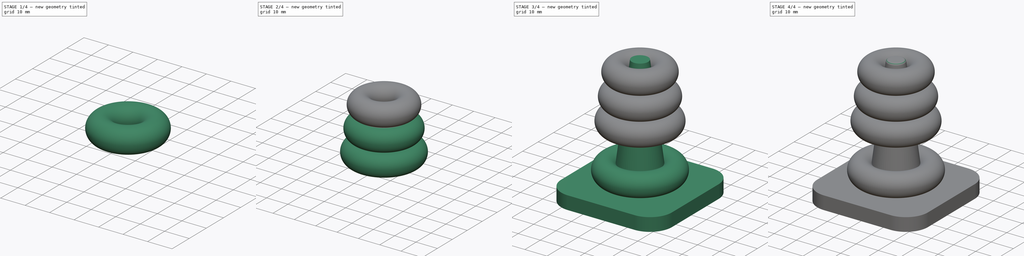
[diagram: build sequence overview — one tinted view per stage of 4, left to right]
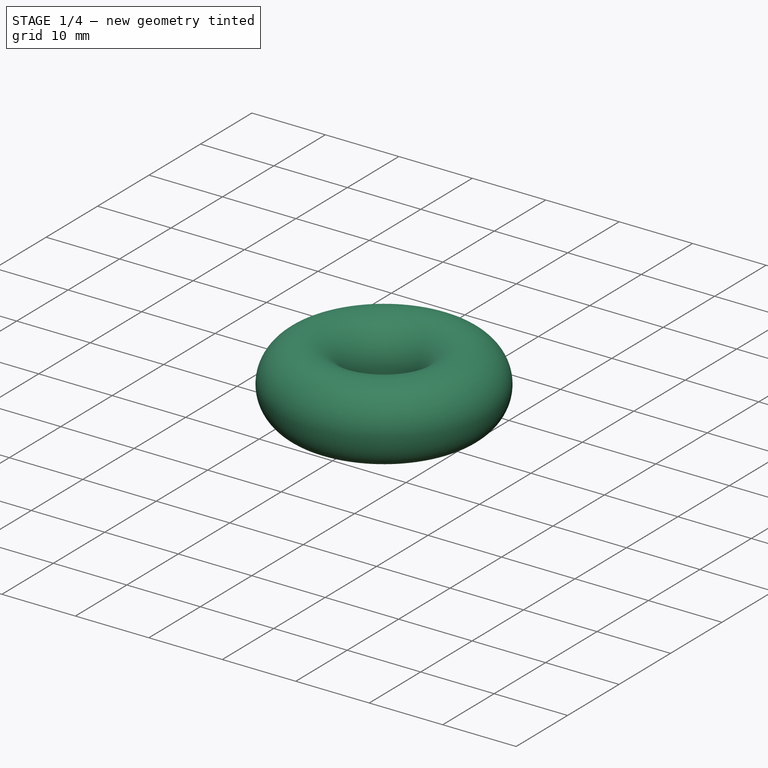
[diagram: stage 1 of 4 — iso view after this stage's code; geometry added in this stage tinted green]
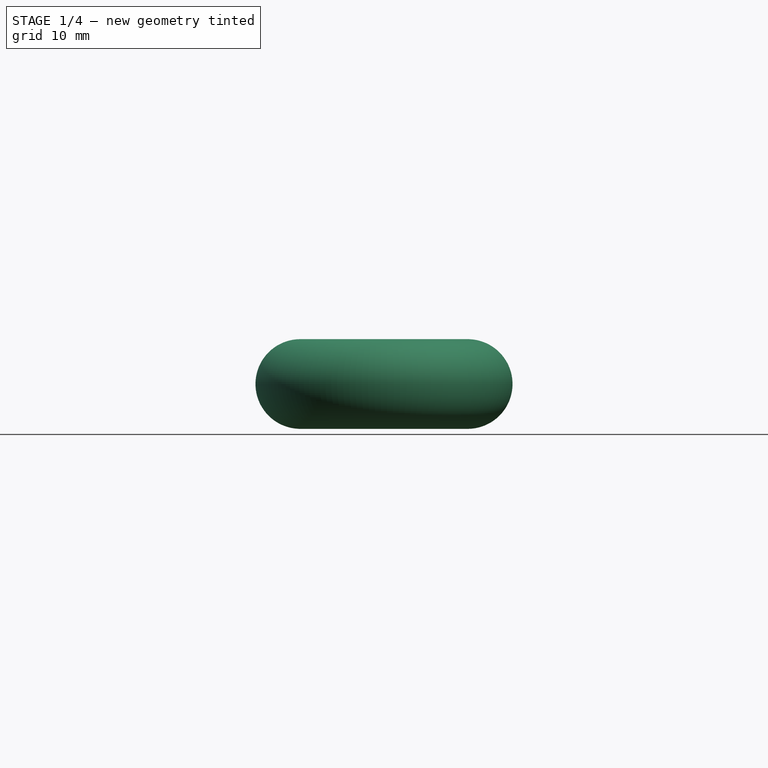
[diagram: stage 1 of 4 — front view after this stage's code; geometry added in this stage tinted green]
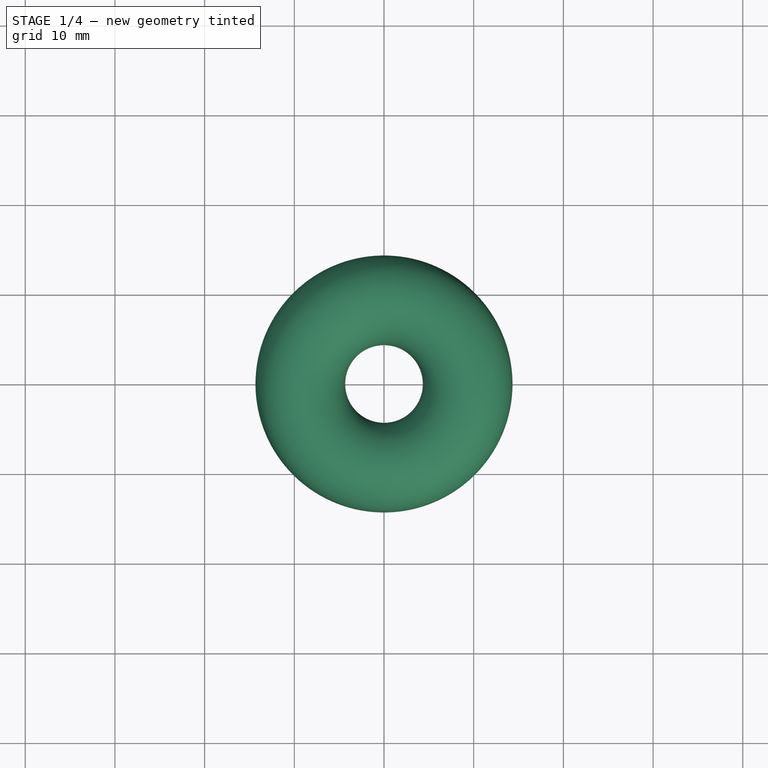
[diagram: stage 1 of 4 — top view after this stage's code; geometry added in this stage tinted green]
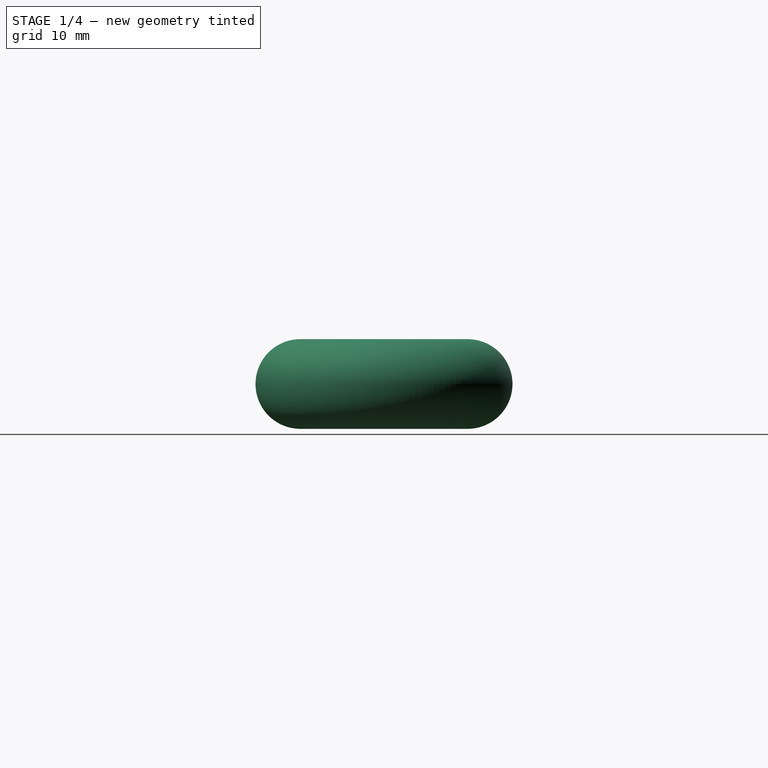
[diagram: stage 1 of 4 — right view after this stage's code; geometry added in this stage tinted green]
FCSTD DOCUMENT  (FreeCAD 0.21R33771 (Git))
Label: stacker
License: All rights reserved
LicenseURL: http://en.wikipedia.org/wiki/All_rights_reserved
objects: PartDesign::Body×6, PartDesign::SubShapeBinder×4, PartDesign::FeatureBase×4, Sketcher::SketchObject×3, PartDesign::Pad×2, PartDesign::Fillet×2, Spreadsheet::Sheet×1, PartDesign::Revolution×1
note: 27 computed .brp shape members not serialized (recipe doc carries the construction recipe); baked Part::Feature solids carry a one-line shape summary decoded from their .brp

FEATURE [PartDesign::Body] Body  label="Base"
  Group = -> [Sketch,Pad,Sketch001,Pad001,Fillet,Fillet001]
  Origin = -> Origin
  Tip = -> Fillet001
FEATURE [Sketcher::SketchObject] Sketch002
  FullyConstrained = true
  MapMode = 5
  Placement = pos=(0,0,0) rot=(1,0,0;1.5708rad)
  Support = -> [XZ_Plane001]
  expr: .Constraints.RingDia = <<Sizes>>.RingThickness
  expr: Constraints[1] = <<Sizes>>.RingThickness / 2
  expr: Constraints[2] = <<Sizes>>.ShaftBase - tan(<<Sizes>>.ShaftAngle) * (href(<<RingBody>>.RingId) + 0.5) * <<Sizes>>.RingThickness - <<Sizes>>.RingThickness / 2
  sketch-geometry (1):
    g0: Circle CenterX=14.3701 CenterY=5 CenterZ=0 NormalX=0 NormalY=0 NormalZ=1 AngleXU=0 Radius=5
  constraints (3):
    c: Diameter(g0) = 10  'RingDia'
    c: DistanceY(g-1,g0) = 5
    c: DistanceX(g0) = 14.3701
FEATURE [PartDesign::Revolution] Revolution
  Angle = 360
  Axis = (0,2e-16,1)
  Base = (0,0,0)
  Placement = pos=(0,0,0) rot=(1,0,0;1.5708rad)
  Profile = -> Sketch002
  ReferenceAxis = -> Sketch002 [V_Axis]
FEATURE [PartDesign::Body] Body004  label="Ring3"
  BaseFeature = -> Binder002
  Group = -> [BaseFeature002,Binder002]
  Origin = -> Origin004
  Tip = -> BaseFeature002
FEATURE [PartDesign::SubShapeBinder] Binder003
  BindCopyOnChange = 2
  BindMode = 0
  ClaimChildren = false
  Context = -> Body005 [Binder003.]
  Fuse = false
  MakeFace = true
  OffsetFill = false
  OffsetIntersection = false
  OffsetJoinType = 0
  OffsetOpenResult = false
  PartialLoad = false
  Relative = true
  RingId = 4
  Support = -> [Body001]
  _Version = 2
FEATURE [PartDesign::FeatureBase] BaseFeature003
  BaseFeature = -> Binder003
FEATURE [PartDesign::Body] Body005  label="Ring4"
  BaseFeature = -> Binder003
  Group = -> [BaseFeature003,Binder003]
  Origin = -> Origin005
  Tip = -> BaseFeature003
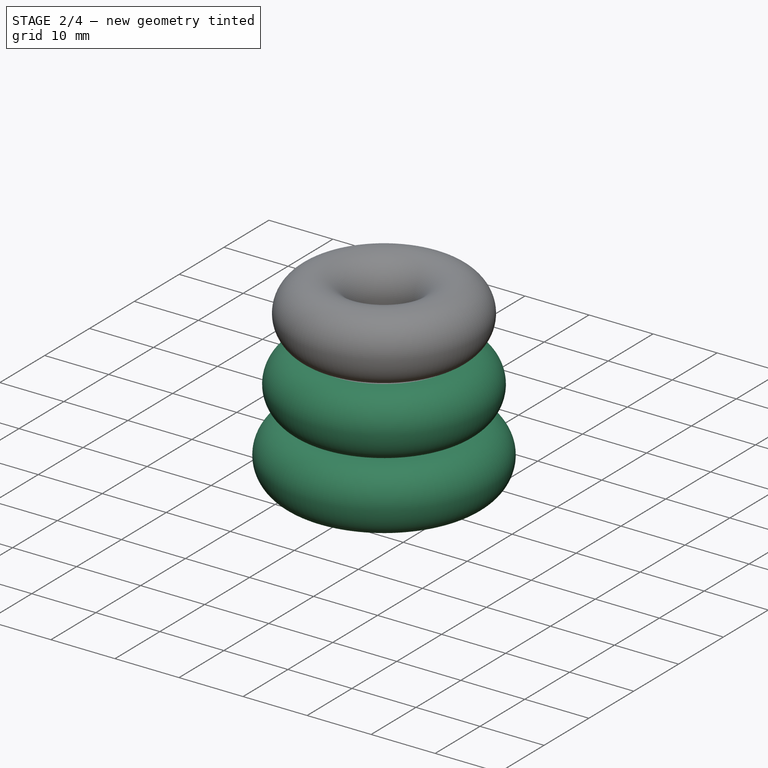
[diagram: stage 2 of 4 — iso view after this stage's code; geometry added in this stage tinted green]
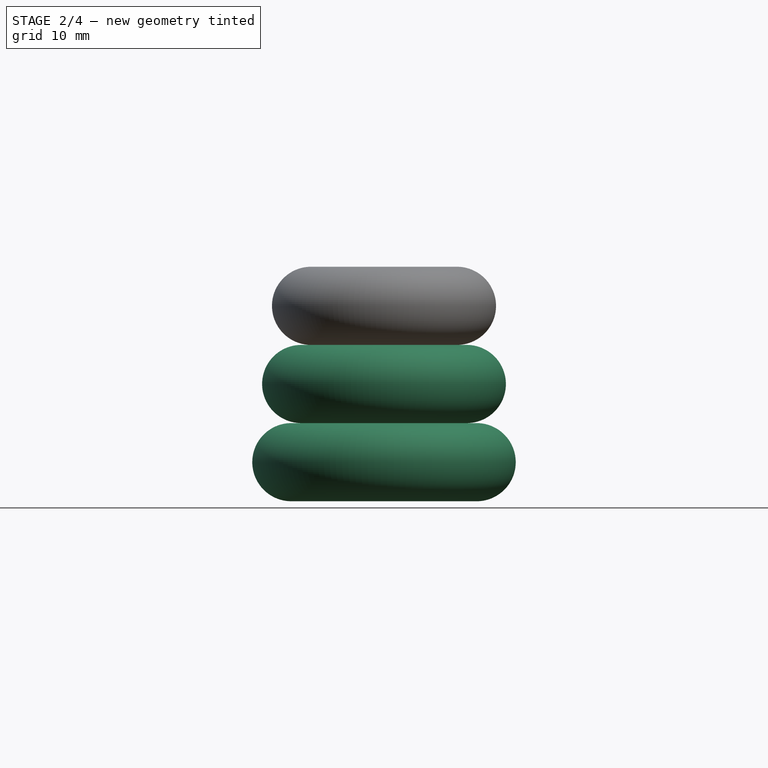
[diagram: stage 2 of 4 — front view after this stage's code; geometry added in this stage tinted green]
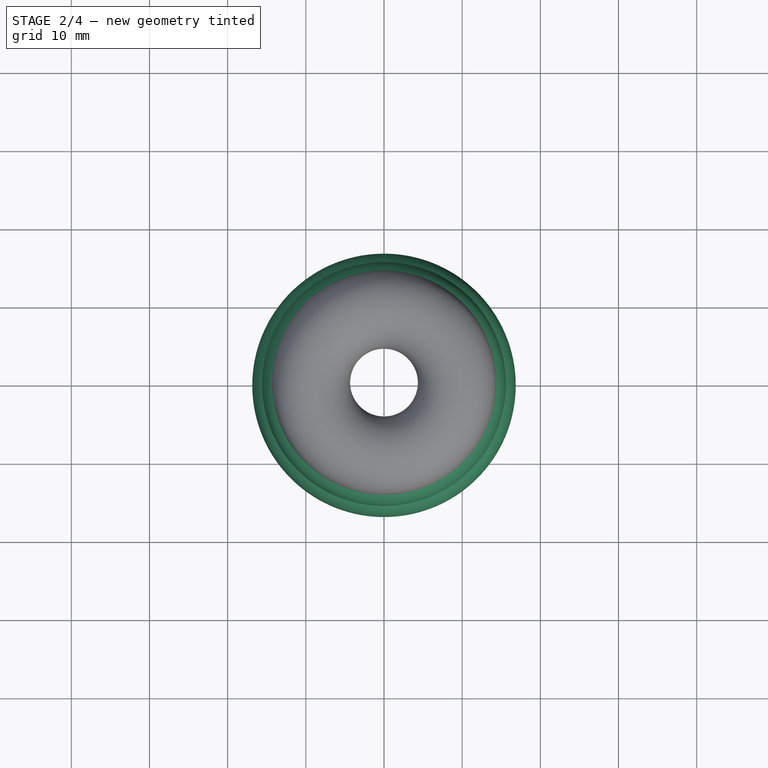
[diagram: stage 2 of 4 — top view after this stage's code; geometry added in this stage tinted green]
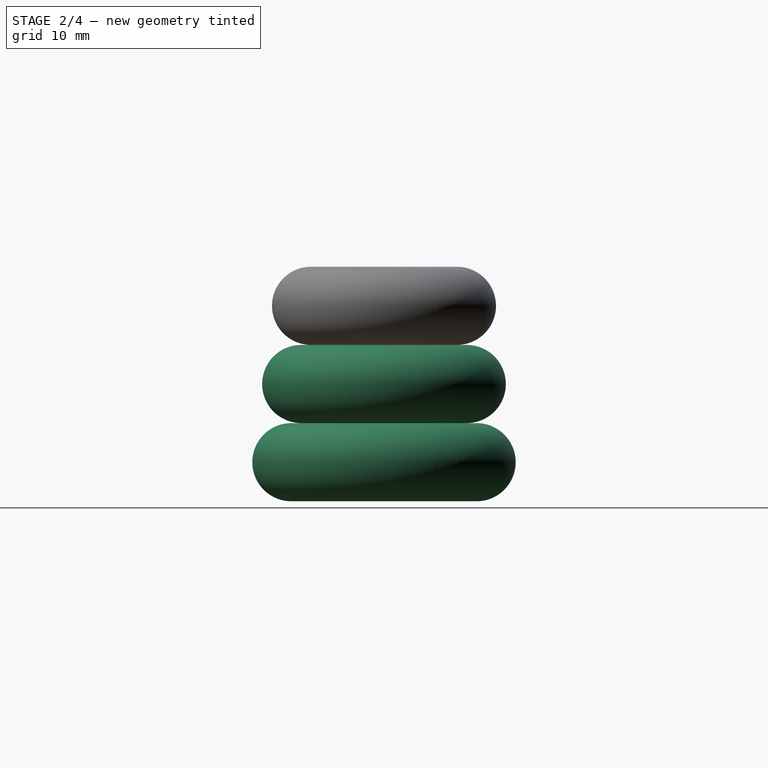
[diagram: stage 2 of 4 — right view after this stage's code; geometry added in this stage tinted green]
FEATURE [PartDesign::Body] Body002  label="Ring1"
  BaseFeature = -> Binder
  Group = -> [BaseFeature,Binder]
  Origin = -> Origin002
  Placement = pos=(0,0,10) rot=(0,0,1;0rad)
  Tip = -> BaseFeature
  expr: .Placement.Base.z = Binder.RingId * <<Sizes>>.RingThickness
FEATURE [PartDesign::SubShapeBinder] Binder001
  BindCopyOnChange = 2
  BindMode = 0
  ClaimChildren = false
  Context = -> Body003 [Binder001.]
  Fuse = false
  MakeFace = true
  OffsetFill = false
  OffsetIntersection = false
  OffsetJoinType = 0
  OffsetOpenResult = false
  PartialLoad = false
  Relative = true
  RingId = 2
  Support = -> [Body001]
  _Version = 2
FEATURE [PartDesign::FeatureBase] BaseFeature001
  BaseFeature = -> Binder001
FEATURE [PartDesign::Body] Body003  label="Ring2"
  BaseFeature = -> Binder001
  Group = -> [BaseFeature001,Binder001]
  Origin = -> Origin003
  Tip = -> BaseFeature001
FEATURE [PartDesign::SubShapeBinder] Binder002
  BindCopyOnChange = 2
  BindMode = 0
  ClaimChildren = false
  Context = -> Body004 [Binder002.]
  Fuse = false
  MakeFace = true
  OffsetFill = false
  OffsetIntersection = false
  OffsetJoinType = 0
  OffsetOpenResult = false
  PartialLoad = false
  Relative = true
  RingId = 3
  Support = -> [Body001]
  _Version = 2
FEATURE [PartDesign::FeatureBase] BaseFeature002
  BaseFeature = -> Binder002
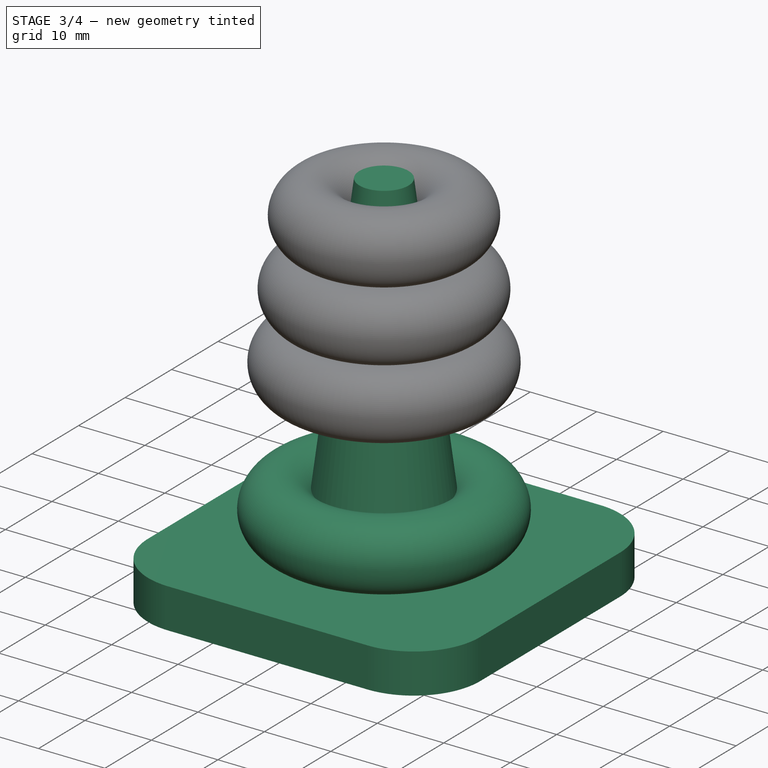
[diagram: stage 3 of 4 — iso view after this stage's code; geometry added in this stage tinted green]
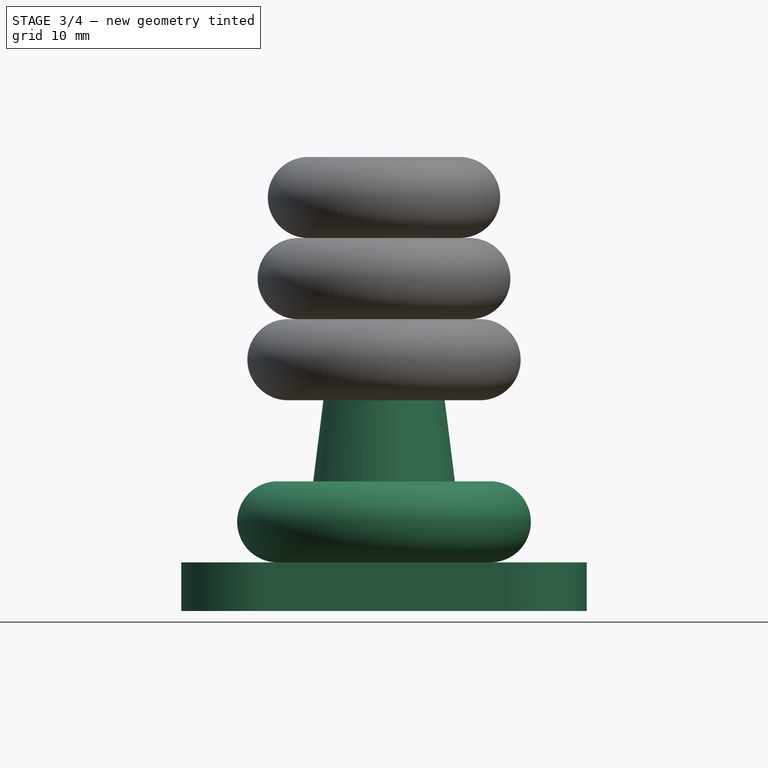
[diagram: stage 3 of 4 — front view after this stage's code; geometry added in this stage tinted green]
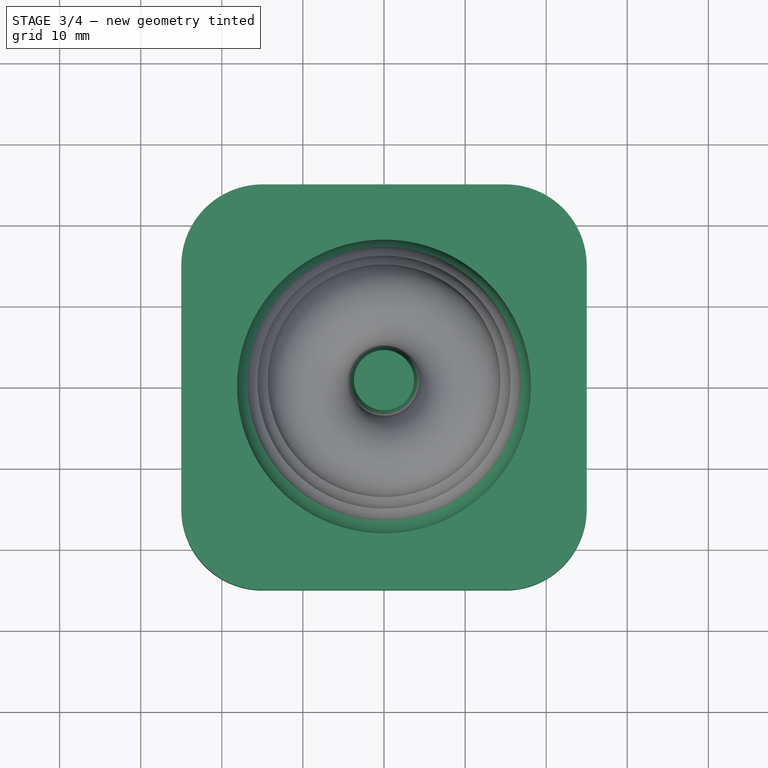
[diagram: stage 3 of 4 — top view after this stage's code; geometry added in this stage tinted green]
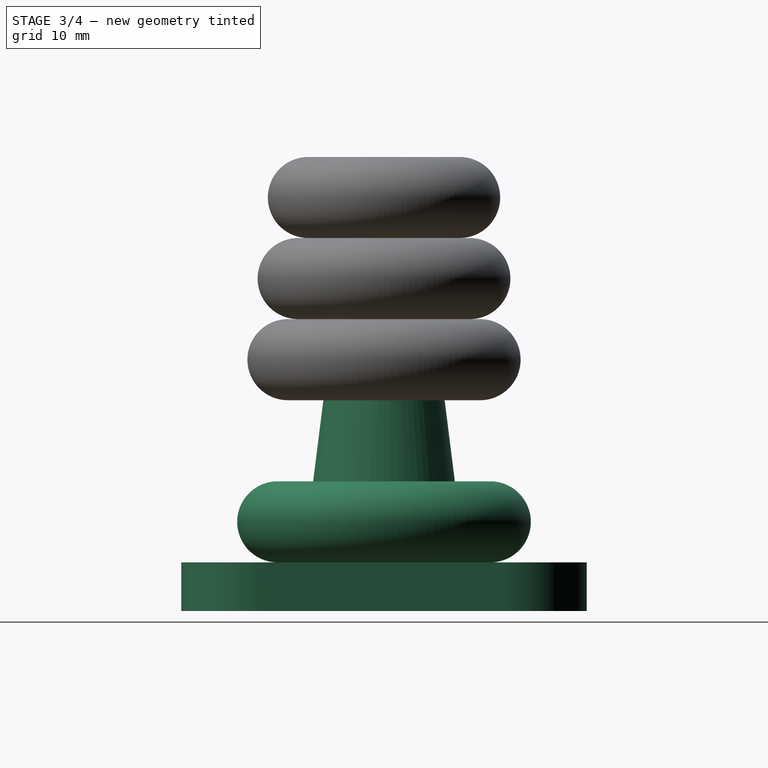
[diagram: stage 3 of 4 — right view after this stage's code; geometry added in this stage tinted green]
FEATURE [Sketcher::SketchObject] Sketch
  FullyConstrained = true
  MapMode = 5
  Support = -> [XY_Plane]
  expr: .Constraints.BaseDims = <<Sizes>>.BaseWidth
  expr: .Constraints.CornerRadius = <<Sizes>>.BaseWidth / 5
  expr: Constraints[17] = .Constraints.BaseDims
  sketch-geometry (8):
    g0: LineSegment StartX=15 StartY=-25 StartZ=0 EndX=-15 EndY=-25 EndZ=0
    g1: LineSegment StartX=-25 StartY=-15 StartZ=0 EndX=-25 EndY=15 EndZ=0
    g2: LineSegment StartX=-15 StartY=25 StartZ=0 EndX=15 EndY=25 EndZ=0
    g3: LineSegment StartX=25 StartY=15 StartZ=0 EndX=25 EndY=-15 EndZ=0
    g4: ArcOfCircle CenterX=15 CenterY=-15 CenterZ=0 NormalX=0 NormalY=0 NormalZ=1 AngleXU=0 Radius=10 StartAngle=4.71239 EndAngle=6.28319
    g5: ArcOfCircle CenterX=-15 CenterY=-15 CenterZ=0 NormalX=0 NormalY=0 NormalZ=1 AngleXU=0 Radius=10 StartAngle=3.14159 EndAngle=4.71239
    g6: ArcOfCircle CenterX=-15 CenterY=15 CenterZ=0 NormalX=0 NormalY=0 NormalZ=1 AngleXU=0 Radius=10 StartAngle=1.5708 EndAngle=3.14159
    g7: ArcOfCircle CenterX=15 CenterY=15 CenterZ=0 NormalX=0 NormalY=0 NormalZ=1 AngleXU=0 Radius=10 StartAngle=-2.31e-14 EndAngle=1.5708
  constraints (19):
    c: Horizontal(g0)
    c: Vertical(g1)
    c: Tangent(g3,g4) = 1.5708
    c: Tangent(g0,g4) = 1.5708
    c: Tangent(g0,g5) = 1.5708
    c: Tangent(g1,g5) = 1.5708
    c: Tangent(g1,g6) = 1.5708
    c: Tangent(g2,g6) = 1.5708
    c: Tangent(g2,g7) = 1.5708
    c: Tangent(g3,g7) = 1.5708
    c: Parallel(g0,g2)
    c: Parallel(g1,g3)
    c: Radius(g4) = 10  'CornerRadius'
    c: Equal(g4,g5)
    c: Equal(g5,g6)
    c: Equal(g6,g7)
    c: DistanceY(g0,g2) = 50  'BaseDims'
    c: DistanceX(g1,g3) = 50
    c: Symmetric(g1,g3,g-1)
FEATURE [Spreadsheet::Sheet] Spreadsheet  label="Sizes"
  cells = A1='BaseWidth; B1(BaseWidth)=50; A2='BaseHeight; B2(BaseHeight)=6; A3='ShaftBase; B3(ShaftBase)==BaseWidth / 5 * 2; A4='ShaftHeight; B4(ShaftHeight)==NumRings * RingThickness; A5='RingThickness; B5(RingThickness)=10; A6='RingNarrowing; B6(RingNarrowing)==RingThickness / 4; A7='ShaftAngle; B7(ShaftAngle)==90 deg - acos(RingNarrowing / 2 / RingThickness); A8='NumRings; B8(NumRings)=5
FEATURE [PartDesign::Pad] Pad  label="BasePad"
  Direction = (0,0,1)
  Length = 6
  Length2 = 10
  Profile = -> Sketch
  ReferenceAxis = -> Sketch [N_Axis]
  Type = 0
  expr: Length = <<Sizes>>.BaseHeight
FEATURE [Sketcher::SketchObject] Sketch001
  ExternalGeometry = -> [Pad]
  FullyConstrained = true
  MapMode = 5
  Placement = pos=(0,0,6) rot=(0,0,1;0rad)
  Support = -> [Pad]
  expr: Constraints[1] = <<Sizes>>.ShaftBase
  sketch-geometry (1):
    g0: Circle CenterX=-2.9e-15 CenterY=1.112e-13 CenterZ=0 NormalX=0 NormalY=0 NormalZ=1 AngleXU=0 Radius=10
  constraints (2):
    c: Symmetric(g-4,g-3,g0)
    c: Diameter(g0) = 20
FEATURE [PartDesign::Pad] Pad001  label="Shaft"
  BaseFeature = -> Pad
  Direction = (0,0,1)
  Length = 50
  Length2 = 10
  Profile = -> Sketch001
  ReferenceAxis = -> Sketch001 [N_Axis]
  TaperAngle = -7.18076
  Type = 0
  expr: Length = <<Sizes>>.ShaftHeight
  expr: TaperAngle = 0 deg - <<Sizes>>.ShaftAngle
FEATURE [PartDesign::Body] Body001  label="RingBody"
  Group = -> [Sketch002,Revolution]
  Origin = -> Origin001
  Placement = pos=(0,0,6) rot=(0,0,1;0rad)
  RingId = 0
  Tip = -> Revolution
  expr: .Placement.Base.z = <<Sizes>>.BaseHeight + RingId * <<Sizes>>.RingThickness
FEATURE [PartDesign::SubShapeBinder] Binder
  BindCopyOnChange = 2
  BindMode = 0
  ClaimChildren = false
  Context = -> Body002 [Binder.]
  Fuse = false
  MakeFace = true
  OffsetFill = false
  OffsetIntersection = false
  OffsetJoinType = 0
  OffsetOpenResult = false
  PartialLoad = false
  Relative = true
  RingId = 1
  Support = -> [Body001]
  _Version = 2
FEATURE [PartDesign::FeatureBase] BaseFeature
  BaseFeature = -> Binder
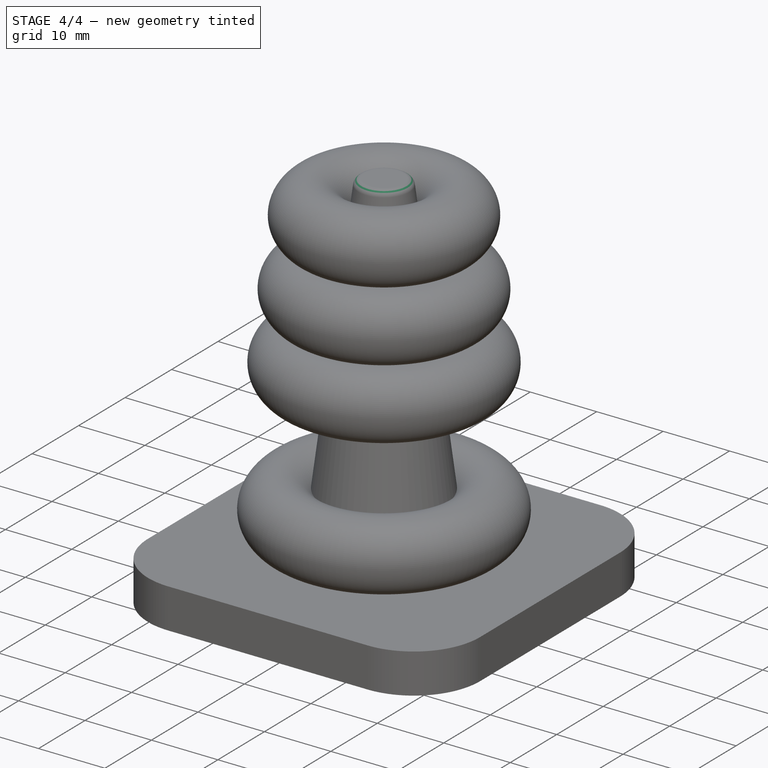
[diagram: stage 4 of 4 — iso view after this stage's code; geometry added in this stage tinted green]
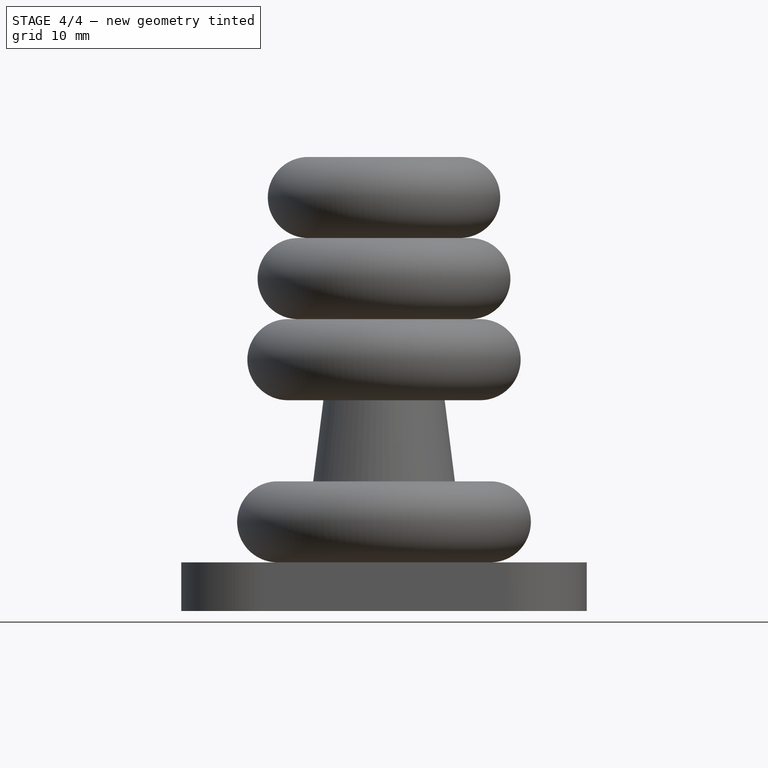
[diagram: stage 4 of 4 — front view after this stage's code; geometry added in this stage tinted green]
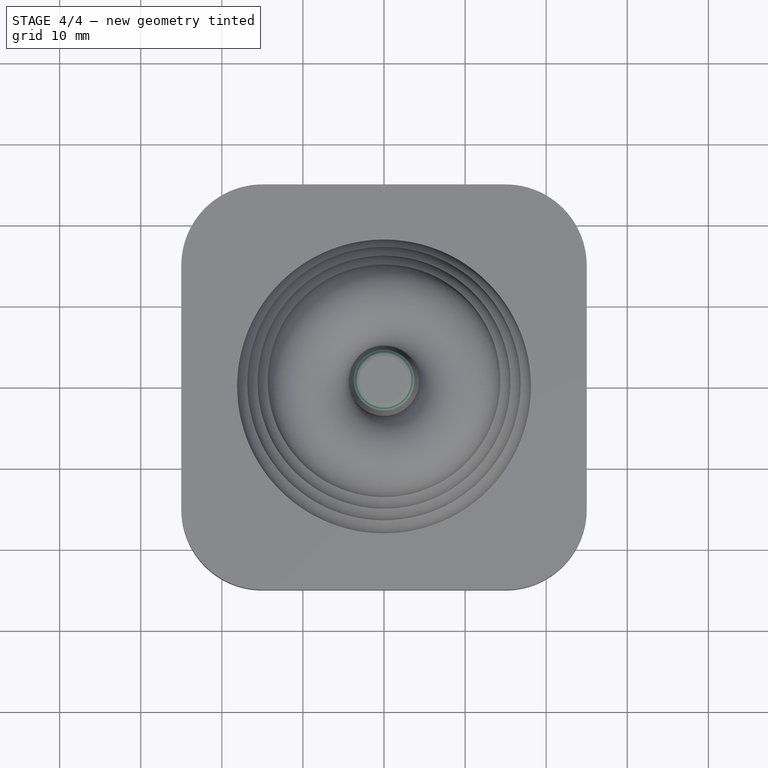
[diagram: stage 4 of 4 — top view after this stage's code; geometry added in this stage tinted green]
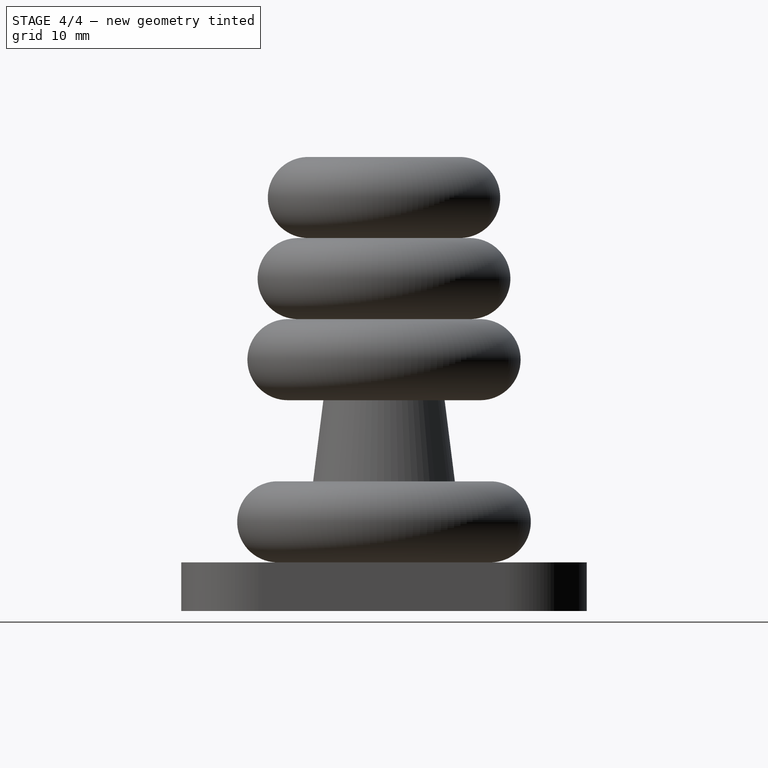
[diagram: stage 4 of 4 — right view after this stage's code; geometry added in this stage tinted green]
FEATURE [PartDesign::Fillet] Fillet
  Base = -> Pad001 [Edge21]
  BaseFeature = -> Pad001
  Radius = 2
  SupportTransform = false
  UseAllEdges = false
FEATURE [PartDesign::Fillet] Fillet001
  Base = -> Fillet [Edge29]
  BaseFeature = -> Fillet
  Radius = 1
  SupportTransform = false
  UseAllEdges = false
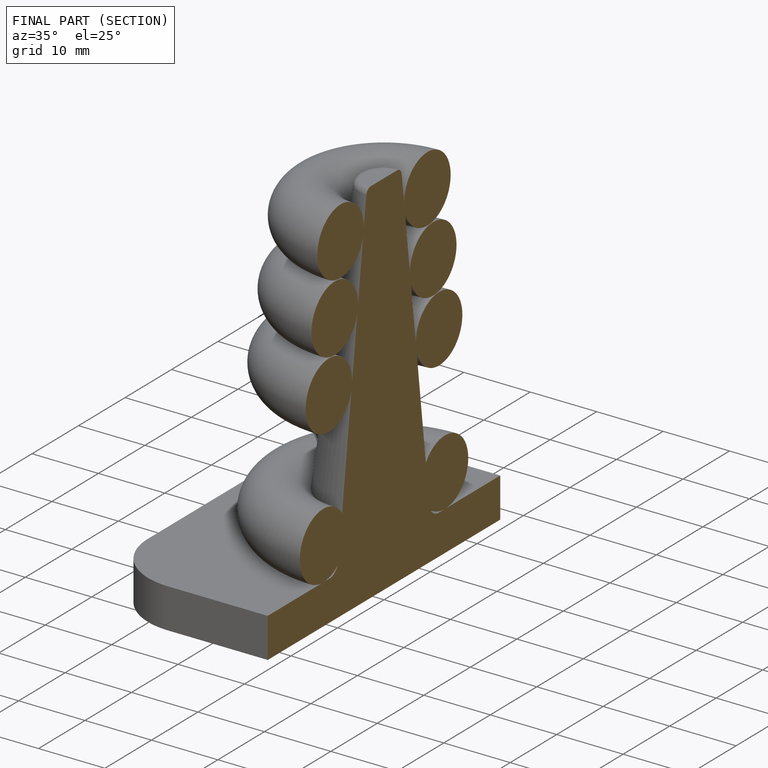
[diagram: finished part — half-section view (interior)]
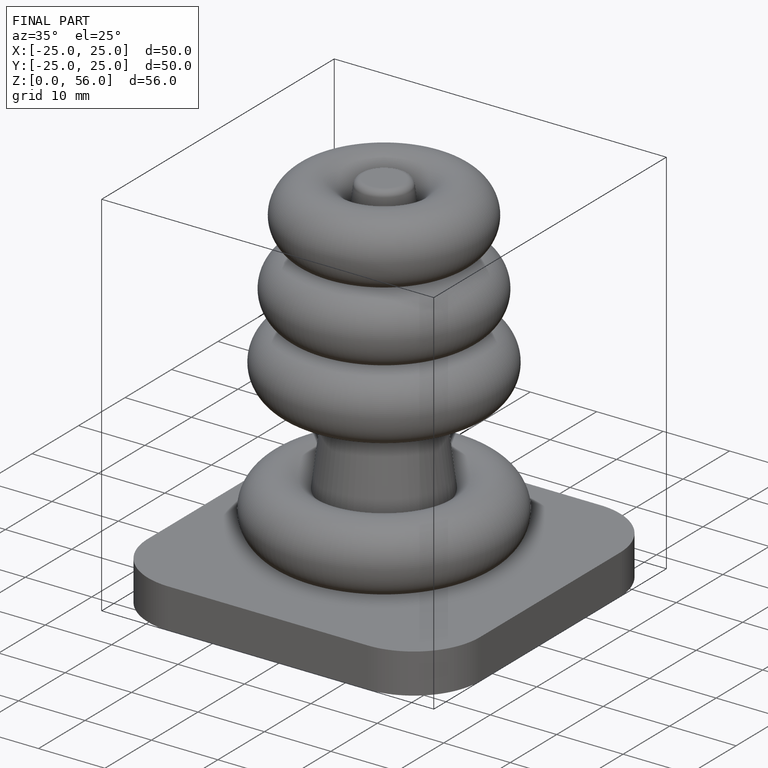
[diagram: finished part — iso view with bounding-box wireframe]
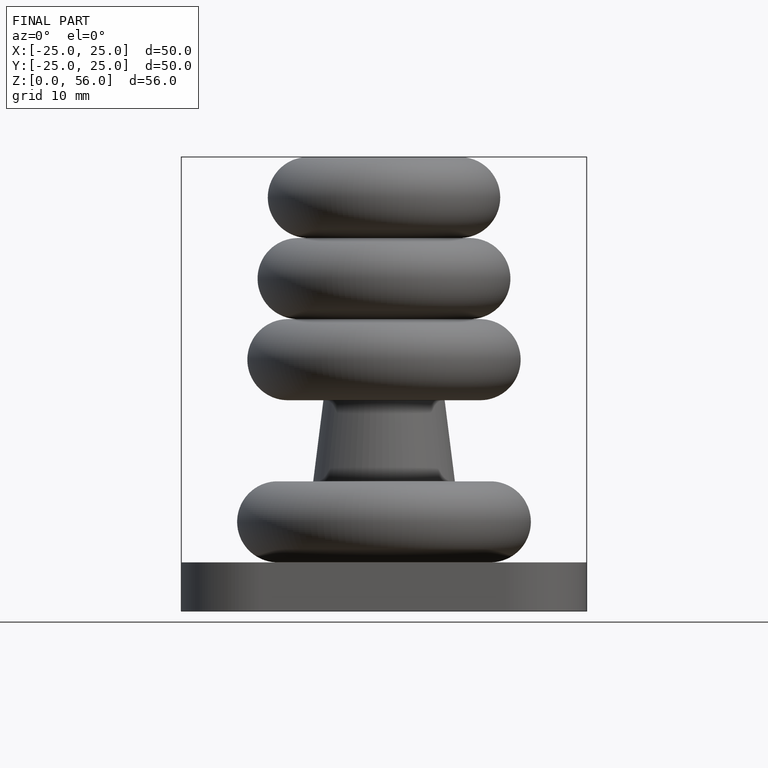
[diagram: finished part — front view with bounding-box wireframe]
